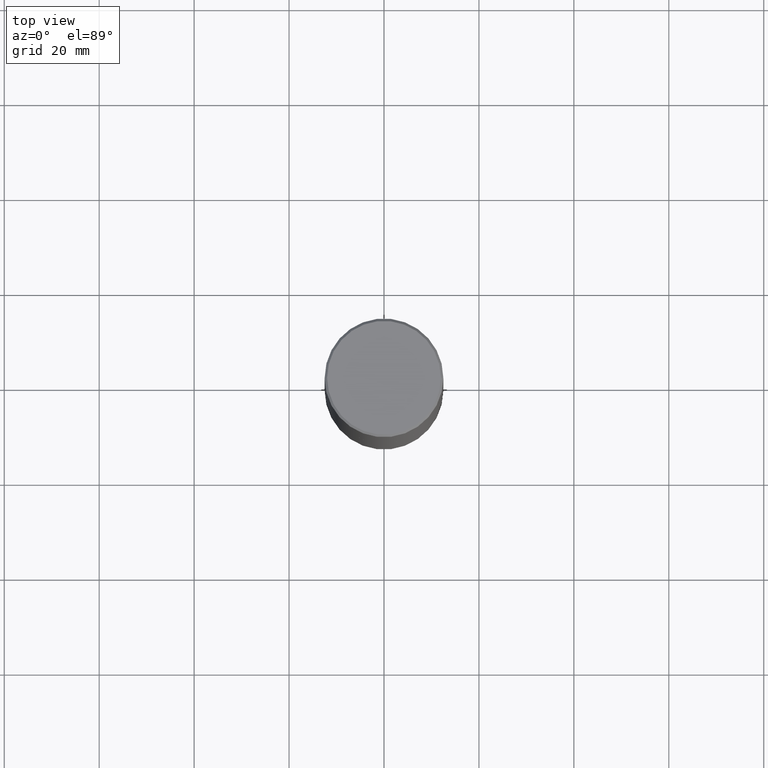
[diagram: clean part render]
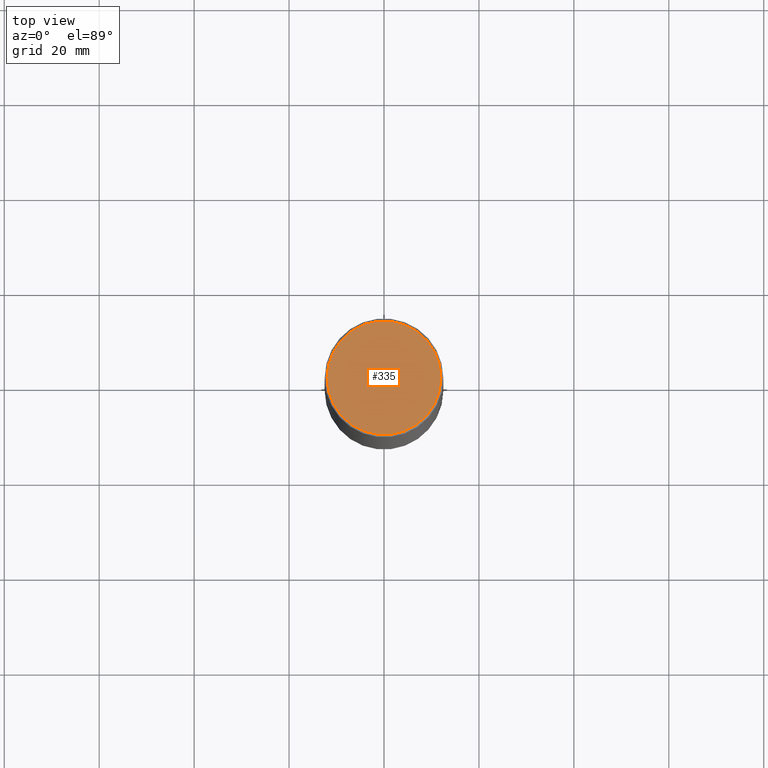
[diagram: same view with one face highlighted and labeled with its STEP entity id]
A machine part, top view. The second image highlights one B-rep face of the part: STEP entity #335.
In plain terms, the highlighted planar face has unit normal (0, -0, -1).
Its self-contained STEP definition (entity closure, byte-faithful):
#46 = CARTESIAN_POINT ( 'NONE',  ( 0.4721499999999996255, -3.342703923013973396E-15, 8.537024980224040028E-18 ) ) ;
#68 = DIRECTION ( 'NONE',  ( -2.445468806185136597E-29, 3.491481338843145583E-15, 1.000000000000000000 ) ) ;
#94 = VERTEX_POINT ( 'NONE', #279 ) ;
#101 = FACE_OUTER_BOUND ( 'NONE', #178, .T. ) ;
#121 = CIRCLE ( 'NONE', #148, 0.4721499999999996255 ) ;
#129 = CARTESIAN_POINT ( 'NONE',  ( -2.087702828670439639E-46, 2.980686340760894400E-32, 8.537024980200822558E-18 ) ) ;
#130 = PLANE ( 'NONE',  #346 ) ;
#139 = AXIS2_PLACEMENT_3D ( 'NONE', #263, #68, #288 ) ;
#148 = AXIS2_PLACEMENT_3D ( 'NONE', #129, #240, #315 ) ;
#169 = CARTESIAN_POINT ( 'NONE',  ( 3.297005828269567997E-15, 0.4721499999999996255, -1.644234401644689488E-15 ) ) ;
#178 = EDGE_LOOP ( 'NONE', ( #275, #337 ) ) ;
#196 = VERTEX_POINT ( 'NONE', #46 ) ;
#226 = EDGE_CURVE ( 'NONE', #196, #94, #244, .T. ) ;
#240 = DIRECTION ( 'NONE',  ( -2.445468806185136597E-29, 3.491481338843145583E-15, 1.000000000000000000 ) ) ;
#244 = CIRCLE ( 'NONE', #139, 0.4721499999999996255 ) ;
#263 = CARTESIAN_POINT ( 'NONE',  ( -2.087702828670439639E-46, 2.980686340760894400E-32, 8.537024980200822558E-18 ) ) ;
#275 = ORIENTED_EDGE ( 'NONE', *, *, #305, .T. ) ;
#279 = CARTESIAN_POINT ( 'NONE',  ( -0.4721499999999996255, 3.331920641657999252E-15, 8.537024980177643606E-18 ) ) ;
#288 = DIRECTION ( 'NONE',  ( 1.000000000000000000, -6.982962677686265922E-15, 4.876006802227162976E-29 ) ) ;
#305 = EDGE_CURVE ( 'NONE', #94, #196, #121, .T. ) ;
#315 = DIRECTION ( 'NONE',  ( 1.000000000000000000, -6.982962677686265922E-15, 4.876006802227162976E-29 ) ) ;
#321 = DIRECTION ( 'NONE',  ( -1.000000000000000000, 6.982962677686265922E-15, -4.876176775795935793E-29 ) ) ;
#333 = DIRECTION ( 'NONE',  ( 2.438088387897960049E-29, -3.491481338843145188E-15, -1.000000000000000000 ) ) ;
#335 = ADVANCED_FACE ( 'NONE', ( #101 ), #130, .F. ) ;
#337 = ORIENTED_EDGE ( 'NONE', *, *, #226, .T. ) ;
#346 = AXIS2_PLACEMENT_3D ( 'NONE', #169, #333, #321 ) ;